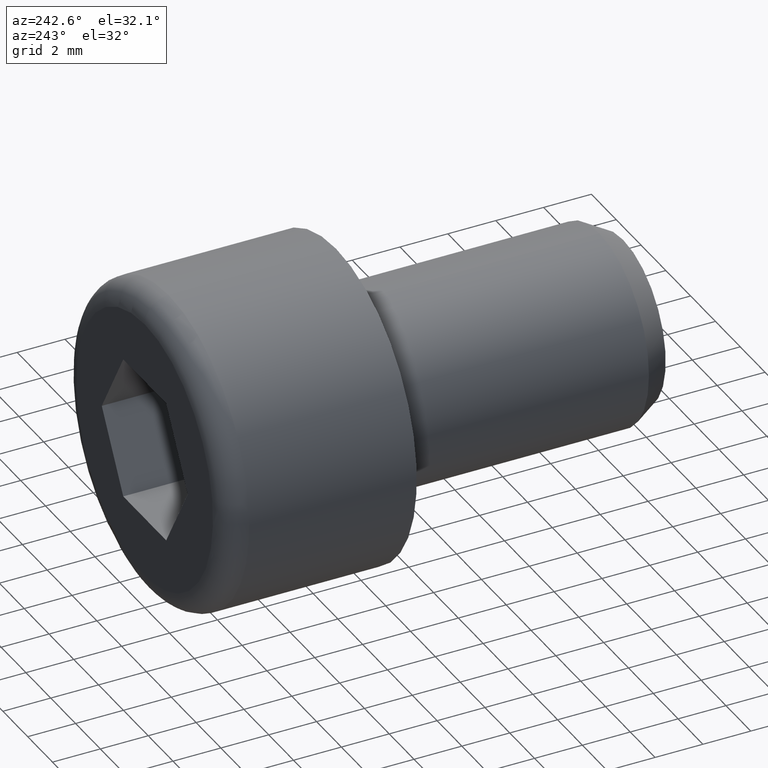
[diagram: clean part render]
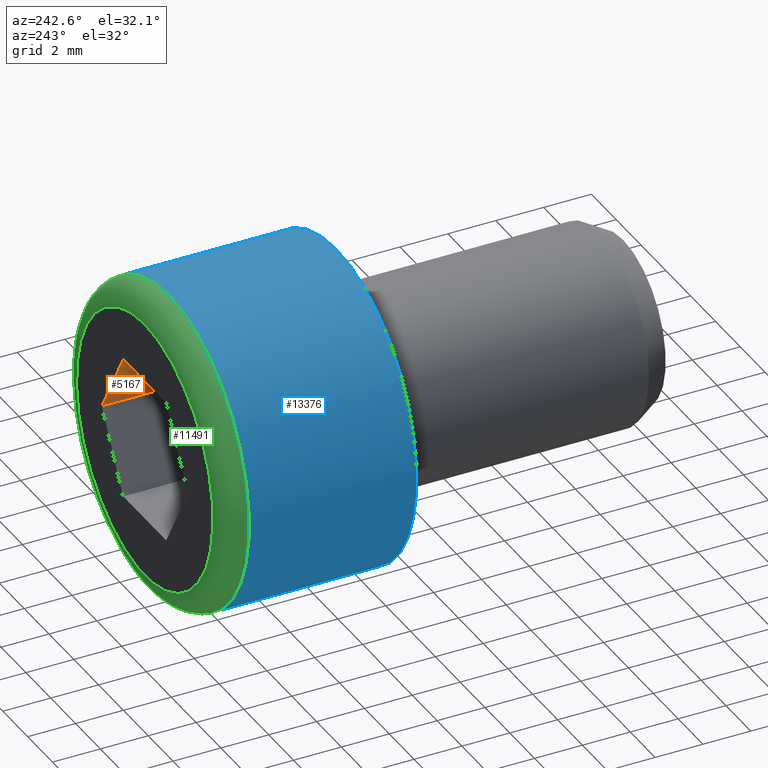
[diagram: same view with three faces highlighted in distinct colors, each labeled with its STEP entity id]
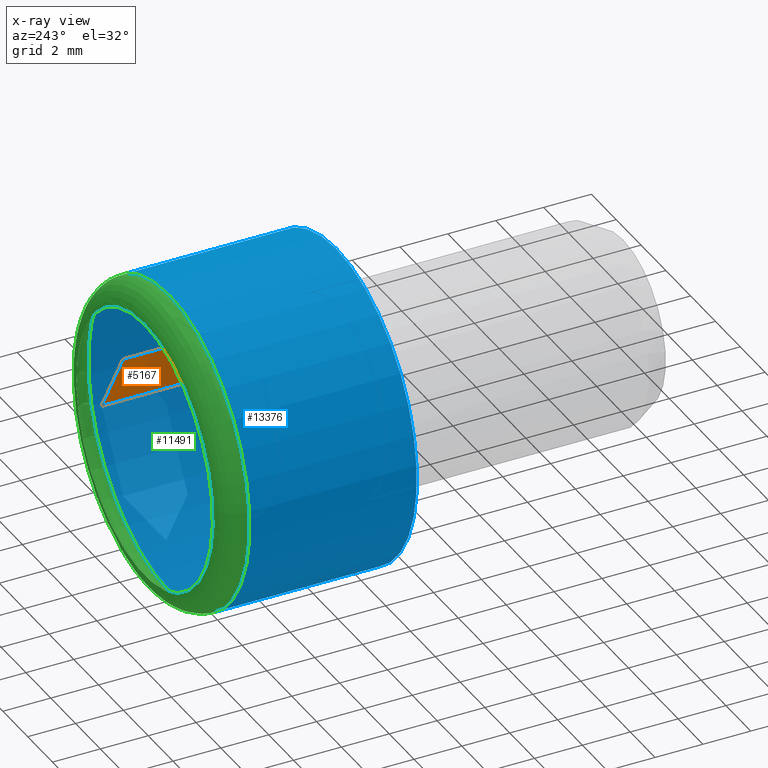
[diagram: x-ray of the same camera — body ghosted, the three highlighted faces saturated]
A machine part, auxiliary view with three faces highlighted in distinct colors.
The next image is the same camera in x-ray (body ghosted, the three faces saturated) — at least one of them is partly hidden behind the body in this view.
Their STEP definitions:

[orange] entity #5167 — the highlighted planar face has unit normal (0.866, 0, 0.5).
#47 = LINE ( 'NONE', #16212, #9559 ) ;
#405 = DIRECTION ( 'NONE',  ( 0.5000000000000001100, 0.0000000000000000000, -0.8660254037844384900 ) ) ;
#474 = EDGE_CURVE ( 'NONE', #5808, #8944, #6096, .T. ) ;
#549 = VECTOR ( 'NONE', #405, 1000.000000000000200 ) ;
#725 = VERTEX_POINT ( 'NONE', #2059 ) ;
#1334 = CARTESIAN_POINT ( 'NONE',  ( 1.732050807568877600, 4.000000000000000000, 3.000000000000000000 ) ) ;
#1674 = ORIENTED_EDGE ( 'NONE', *, *, #4755, .F. ) ;
#2059 = CARTESIAN_POINT ( 'NONE',  ( 3.464101615137755300, 4.000000000000000000, 8.032070669435346800E-016 ) ) ;
#2488 = DIRECTION ( 'NONE',  ( 0.5000000000000001100, 0.0000000000000000000, -0.8660254037844384900 ) ) ;
#3018 = CARTESIAN_POINT ( 'NONE',  ( 1.732050807568877600, 4.000000000000000000, 3.000000000000000000 ) ) ;
#3228 = LINE ( 'NONE', #13752, #8757 ) ;
#3867 = FACE_OUTER_BOUND ( 'NONE', #6363, .T. ) ;
#3984 = CARTESIAN_POINT ( 'NONE',  ( 2.598076211353316000, 3.999999999999999100, 1.500000000000000900 ) ) ;
#4386 = DIRECTION ( 'NONE',  ( -0.0000000000000000000, 1.000000000000000000, -0.0000000000000000000 ) ) ;
#4755 = EDGE_CURVE ( 'NONE', #725, #8944, #11999, .T. ) ;
#5001 = ORIENTED_EDGE ( 'NONE', *, *, #9814, .F. ) ;
#5167 = ADVANCED_FACE ( 'NONE', ( #3867 ), #15310, .F. ) ;
#5808 = VERTEX_POINT ( 'NONE', #9606 ) ;
#6096 = LINE ( 'NONE', #11089, #549 ) ;
#6363 = EDGE_LOOP ( 'NONE', ( #16395, #1674, #14816, #5001, #8105 ) ) ;
#7012 = VERTEX_POINT ( 'NONE', #3984 ) ;
#8105 = ORIENTED_EDGE ( 'NONE', *, *, #12477, .T. ) ;
#8757 = VECTOR ( 'NONE', #2488, 1000.000000000000200 ) ;
#8771 = EDGE_CURVE ( 'NONE', #7012, #725, #47, .T. ) ;
#8944 = VERTEX_POINT ( 'NONE', #11742 ) ;
#9559 = VECTOR ( 'NONE', #13590, 1000.000000000000200 ) ;
#9606 = CARTESIAN_POINT ( 'NONE',  ( 1.732050807568877900, 8.000000000000000000, 3.000000000000000000 ) ) ;
#9609 = AXIS2_PLACEMENT_3D ( 'NONE', #10045, #11340, #16437 ) ;
#9814 = EDGE_CURVE ( 'NONE', #13301, #7012, #3228, .T. ) ;
#10045 = CARTESIAN_POINT ( 'NONE',  ( 1.732050807568877600, 4.000000000000000000, 3.000000000000000000 ) ) ;
#10295 = LINE ( 'NONE', #1334, #16015 ) ;
#11089 = CARTESIAN_POINT ( 'NONE',  ( 1.732050807568877600, 8.000000000000000000, 3.000000000000000000 ) ) ;
#11340 = DIRECTION ( 'NONE',  ( 0.8660254037844386000, 0.0000000000000000000, 0.5000000000000002200 ) ) ;
#11742 = CARTESIAN_POINT ( 'NONE',  ( 3.464101615137755300, 8.000000000000000000, 8.032070669435346800E-016 ) ) ;
#11999 = LINE ( 'NONE', #12596, #12192 ) ;
#12192 = VECTOR ( 'NONE', #4386, 1000.000000000000000 ) ;
#12477 = EDGE_CURVE ( 'NONE', #13301, #5808, #10295, .T. ) ;
#12596 = CARTESIAN_POINT ( 'NONE',  ( 3.464101615137755300, 4.000000000000000000, 8.032070669435346800E-016 ) ) ;
#13301 = VERTEX_POINT ( 'NONE', #3018 ) ;
#13590 = DIRECTION ( 'NONE',  ( 0.5000000000000001100, 0.0000000000000000000, -0.8660254037844384900 ) ) ;
#13752 = CARTESIAN_POINT ( 'NONE',  ( 1.732050807568877600, 4.000000000000000000, 3.000000000000000000 ) ) ;
#14816 = ORIENTED_EDGE ( 'NONE', *, *, #8771, .F. ) ;
#15310 = PLANE ( 'NONE',  #9609 ) ;
#16015 = VECTOR ( 'NONE', #16381, 1000.000000000000000 ) ;
#16212 = CARTESIAN_POINT ( 'NONE',  ( 1.732050807568877600, 4.000000000000000000, 3.000000000000000000 ) ) ;
#16381 = DIRECTION ( 'NONE',  ( -0.0000000000000000000, 1.000000000000000000, -0.0000000000000000000 ) ) ;
#16395 = ORIENTED_EDGE ( 'NONE', *, *, #474, .T. ) ;
#16437 = DIRECTION ( 'NONE',  ( 0.5000000000000002200, 0.0000000000000000000, -0.8660254037844386000 ) ) ;

[blue] entity #13376 — the highlighted cylindrical surface (bore or boss wall) has radius 6.5 mm, axis along (-0, -1, -0).
#651 = AXIS2_PLACEMENT_3D ( 'NONE', #13341, #3178, #12022 ) ;
#953 = FACE_OUTER_BOUND ( 'NONE', #3491, .T. ) ;
#1683 = ORIENTED_EDGE ( 'NONE', *, *, #13352, .T. ) ;
#2162 = VERTEX_POINT ( 'NONE', #2263 ) ;
#2263 = CARTESIAN_POINT ( 'NONE',  ( 0.0000000000000000000, 7.000000000000000000, 6.500000000000000900 ) ) ;
#3072 = CARTESIAN_POINT ( 'NONE',  ( 0.0000000000000000000, 8.000000000000000000, 0.0000000000000000000 ) ) ;
#3178 = DIRECTION ( 'NONE',  ( -0.0000000000000000000, -1.000000000000000000, -0.0000000000000000000 ) ) ;
#3491 = EDGE_LOOP ( 'NONE', ( #4697 ) ) ;
#3502 = AXIS2_PLACEMENT_3D ( 'NONE', #5798, #12306, #14826 ) ;
#3936 = FACE_OUTER_BOUND ( 'NONE', #5727, .T. ) ;
#4697 = ORIENTED_EDGE ( 'NONE', *, *, #12879, .T. ) ;
#5331 = CYLINDRICAL_SURFACE ( 'NONE', #14001, 6.500000000000000900 ) ;
#5534 = VERTEX_POINT ( 'NONE', #13758 ) ;
#5727 = EDGE_LOOP ( 'NONE', ( #1683 ) ) ;
#5798 = CARTESIAN_POINT ( 'NONE',  ( 0.0000000000000000000, 0.0000000000000000000, 0.0000000000000000000 ) ) ;
#11920 = DIRECTION ( 'NONE',  ( -0.0000000000000000000, -1.000000000000000000, -0.0000000000000000000 ) ) ;
#12022 = DIRECTION ( 'NONE',  ( 0.0000000000000000000, 0.0000000000000000000, 1.000000000000000000 ) ) ;
#12306 = DIRECTION ( 'NONE',  ( 0.0000000000000000000, 1.000000000000000000, 0.0000000000000000000 ) ) ;
#12879 = EDGE_CURVE ( 'NONE', #5534, #5534, #13260, .T. ) ;
#13260 = CIRCLE ( 'NONE', #3502, 6.500000000000000900 ) ;
#13341 = CARTESIAN_POINT ( 'NONE',  ( 0.0000000000000000000, 7.000000000000000000, 0.0000000000000000000 ) ) ;
#13352 = EDGE_CURVE ( 'NONE', #2162, #2162, #14995, .T. ) ;
#13376 = ADVANCED_FACE ( 'NONE', ( #3936, #953 ), #5331, .T. ) ;
#13758 = CARTESIAN_POINT ( 'NONE',  ( 0.0000000000000000000, 0.0000000000000000000, 6.500000000000000900 ) ) ;
#14001 = AXIS2_PLACEMENT_3D ( 'NONE', #3072, #11920, #14442 ) ;
#14442 = DIRECTION ( 'NONE',  ( 0.0000000000000000000, 0.0000000000000000000, -1.000000000000000000 ) ) ;
#14826 = DIRECTION ( 'NONE',  ( 0.0000000000000000000, 0.0000000000000000000, 1.000000000000000000 ) ) ;
#14995 = CIRCLE ( 'NONE', #651, 6.500000000000000900 ) ;

[green] entity #11491 — the highlighted toroidal blend (fillet) surface has major radius 5.5 mm and minor (blend) radius 1 mm.
#651 = AXIS2_PLACEMENT_3D ( 'NONE', #13341, #3178, #12022 ) ;
#705 = DIRECTION ( 'NONE',  ( 0.0000000000000000000, 0.0000000000000000000, 1.000000000000000000 ) ) ;
#2162 = VERTEX_POINT ( 'NONE', #2263 ) ;
#2263 = CARTESIAN_POINT ( 'NONE',  ( 0.0000000000000000000, 7.000000000000000000, 6.500000000000000900 ) ) ;
#2320 = CARTESIAN_POINT ( 'NONE',  ( 0.0000000000000000000, 8.000000000000000000, 5.500000000000000900 ) ) ;
#2804 = TOROIDAL_SURFACE ( 'NONE', #9328, 5.500000000000000900, 1.000000000000000000 ) ;
#3178 = DIRECTION ( 'NONE',  ( -0.0000000000000000000, -1.000000000000000000, -0.0000000000000000000 ) ) ;
#4298 = DIRECTION ( 'NONE',  ( 0.0000000000000000000, 1.000000000000000000, 0.0000000000000000000 ) ) ;
#4354 = EDGE_LOOP ( 'NONE', ( #10773 ) ) ;
#4366 = FACE_OUTER_BOUND ( 'NONE', #4354, .T. ) ;
#4928 = EDGE_CURVE ( 'NONE', #10675, #10675, #12606, .T. ) ;
#5837 = CARTESIAN_POINT ( 'NONE',  ( 0.0000000000000000000, 8.000000000000000000, 0.0000000000000000000 ) ) ;
#5867 = EDGE_LOOP ( 'NONE', ( #7235 ) ) ;
#6155 = FACE_OUTER_BOUND ( 'NONE', #5867, .T. ) ;
#7235 = ORIENTED_EDGE ( 'NONE', *, *, #13352, .F. ) ;
#9328 = AXIS2_PLACEMENT_3D ( 'NONE', #13274, #4298, #705 ) ;
#10675 = VERTEX_POINT ( 'NONE', #2320 ) ;
#10760 = DIRECTION ( 'NONE',  ( 0.0000000000000000000, 1.000000000000000000, 0.0000000000000000000 ) ) ;
#10773 = ORIENTED_EDGE ( 'NONE', *, *, #4928, .F. ) ;
#11491 = ADVANCED_FACE ( 'NONE', ( #6155, #4366 ), #2804, .T. ) ;
#11976 = DIRECTION ( 'NONE',  ( 0.0000000000000000000, 0.0000000000000000000, 1.000000000000000000 ) ) ;
#12022 = DIRECTION ( 'NONE',  ( 0.0000000000000000000, 0.0000000000000000000, 1.000000000000000000 ) ) ;
#12606 = CIRCLE ( 'NONE', #16176, 5.500000000000000900 ) ;
#13274 = CARTESIAN_POINT ( 'NONE',  ( 0.0000000000000000000, 7.000000000000000000, 0.0000000000000000000 ) ) ;
#13341 = CARTESIAN_POINT ( 'NONE',  ( 0.0000000000000000000, 7.000000000000000000, 0.0000000000000000000 ) ) ;
#13352 = EDGE_CURVE ( 'NONE', #2162, #2162, #14995, .T. ) ;
#14995 = CIRCLE ( 'NONE', #651, 6.500000000000000900 ) ;
#16176 = AXIS2_PLACEMENT_3D ( 'NONE', #5837, #10760, #11976 ) ;